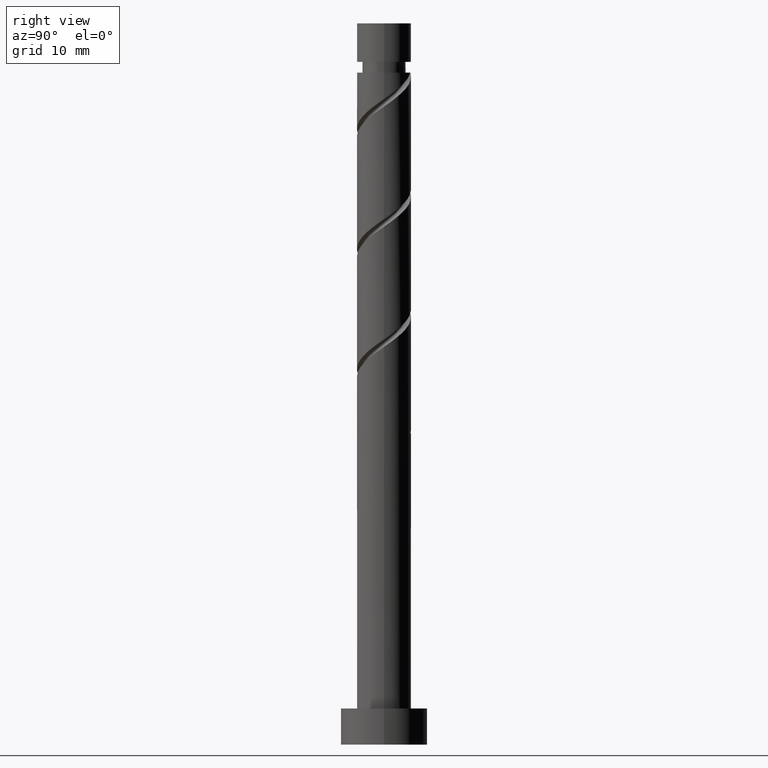
[diagram: clean part render]
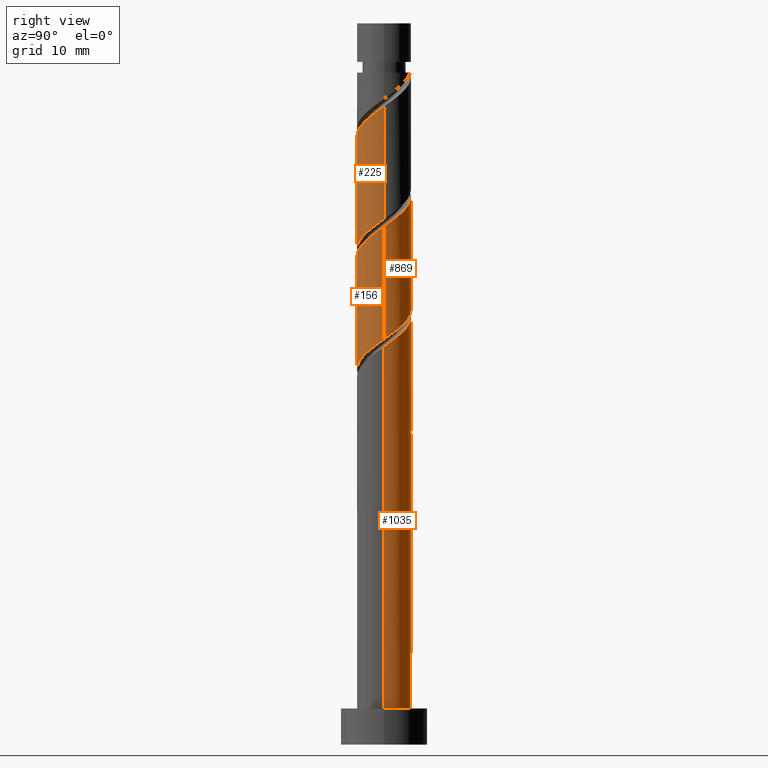
[diagram: same view with one multi-face feature highlighted, each face labeled with its STEP entity id]
A machine part, right view. The highlighted faces form ONE feature: a constant-radius fillet chain: 4 tangent blend faces with common blend radius 3.75 mm. The faces share edges in the B-rep.
Their STEP definitions:
[1] entity #225 (Cylinder):
#33 = CARTESIAN_POINT ( 'NONE',  ( -1.394242231933575216, -3.543417652029101639, 67.70943715520195383 ) ) ;
#80 = CARTESIAN_POINT ( 'NONE',  ( 3.750000000000000000, 4.592425496802573972E-16, 100.0000000000000000 ) ) ;
#108 = CARTESIAN_POINT ( 'NONE',  ( 2.933897913474575514, -2.335539131187822193, 86.69091863668346321 ) ) ;
#118 = CARTESIAN_POINT ( 'NONE',  ( -0.5556872624040036790, -3.708599690773053403, 83.91314085890567753 ) ) ;
#157 = CARTESIAN_POINT ( 'NONE',  ( 3.247477553077034340, -1.988368577572917850, 71.41314085890564911 ) ) ;
#162 = CARTESIAN_POINT ( 'NONE',  ( 3.489585175878574752, -1.373060559585228546, 71.87610382186859681 ) ) ;
#166 = CARTESIAN_POINT ( 'NONE',  ( 0.000000000000000000, 0.000000000000000000, 100.0000000000000000 ) ) ;
#169 = EDGE_CURVE ( 'NONE', #1388, #1272, #1254, .T. ) ;
#200 = ORIENTED_EDGE ( 'NONE', *, *, #1449, .F. ) ;
#202 = FACE_OUTER_BOUND ( 'NONE', #864, .T. ) ;
#209 = CARTESIAN_POINT ( 'NONE',  ( -2.809523069992834632, -2.483763297735530617, 82.06128900705378726 ) ) ;
#218 = CARTESIAN_POINT ( 'NONE',  ( -3.489585175878578749, -1.373060559585229878, 81.13536308112786344 ) ) ;
#225 = ADVANCED_FACE ( 'NONE', ( #202 ), #848, .T. ) ;
#229 = CARTESIAN_POINT ( 'NONE',  ( 1.958160791039665671, -3.198141072003383378, 85.76499271075753938 ) ) ;
#257 = VECTOR ( 'NONE', #544, 1000.000000000000000 ) ;
#262 = CARTESIAN_POINT ( 'NONE',  ( -3.345716476803391348, -1.818213770397982598, 65.85758530335009198 ) ) ;
#277 = ORIENTED_EDGE ( 'NONE', *, *, #949, .F. ) ;
#282 = LINE ( 'NONE', #80, #257 ) ;
#336 = CARTESIAN_POINT ( 'NONE',  ( 3.750000000000004885, 2.210967048940267779E-15, 88.47487856317617627 ) ) ;
#355 = CARTESIAN_POINT ( 'NONE',  ( 0.09823892372635467662, -3.806582347970903779, 84.37610382186861102 ) ) ;
#385 = CARTESIAN_POINT ( 'NONE',  ( 3.748751808761155324, -0.09674645373329211762, 72.80202974779454905 ) ) ;
#408 = CARTESIAN_POINT ( 'NONE',  ( 2.371568586908622933, -2.979158017898141608, 70.48721493297972529 ) ) ;
#432 = DIRECTION ( 'NONE',  ( -0.000000000000000000, -0.000000000000000000, -1.000000000000000000 ) ) ;
#448 =( BOUNDED_CURVE ( )  B_SPLINE_CURVE ( 2, ( #1344, #1372, #770, #1235, #218, #881, #209, #1363, #458, #666, #118, #355, #1126, #1382, #229, #782, #108, #676, #553, #467, #336 ),
 .UNSPECIFIED., .F., .T. ) 
 B_SPLINE_CURVE_WITH_KNOTS ( ( 3, 2, 2, 2, 2, 2, 2, 2, 2, 2, 3 ),
 ( 0.5545248053855289516, 0.5555555555555555802, 0.5694444444444444198, 0.5833333333333332593, 0.5972222222222222099, 0.6111111111111111605, 0.6250000000000000000, 0.6388888888888888395, 0.6527777777777777901, 0.6666666666666667407, 0.6795248053855291737 ),
 .UNSPECIFIED. ) 
 CURVE ( )  GEOMETRIC_REPRESENTATION_ITEM ( )  RATIONAL_B_SPLINE_CURVE ( ( 0.9071930855141259187, 0.9080659294509736412, 0.9090909090909138346, 0.8952797754656482976, 0.9090909090909138346, 0.8952797754656482976, 0.9090909090909138346, 0.8952797754656482976, 0.9090909090909138346, 0.8952797754656482976, 0.9090909090909138346, 0.8952797754656482976, 0.9090909090909138346, 0.8952797754656482976, 0.9090909090909138346, 0.8952797754656482976, 0.9090909090909138346, 0.8952797754656482976, 0.9090909090909138346, 0.8963047551055882689, 0.9071930855141263628 ) ) 
 REPRESENTATION_ITEM ( '' )  );
#458 = CARTESIAN_POINT ( 'NONE',  ( -1.790591017721495204, -3.294887525736672984, 82.98721493297971108 ) ) ;
#467 = CARTESIAN_POINT ( 'NONE',  ( 3.750000000000006661, -0.6114538943267114890, 88.04495905081056151 ) ) ;
#526 = ORIENTED_EDGE ( 'NONE', *, *, #169, .F. ) ;
#527 = DIRECTION ( 'NONE',  ( -1.000000000000000000, 0.000000000000000000, 0.000000000000000000 ) ) ;
#544 = DIRECTION ( 'NONE',  ( -0.000000000000000000, -0.000000000000000000, -1.000000000000000000 ) ) ;
#553 = CARTESIAN_POINT ( 'NONE',  ( 3.555763647822799189, -1.191236702264475644, 87.61684456260935860 ) ) ;
#608 = CARTESIAN_POINT ( 'NONE',  ( 1.790591017721492095, -3.294887525736669431, 70.02425197001677759 ) ) ;
#613 = CARTESIAN_POINT ( 'NONE',  ( -3.555763647822794749, -1.191236702264470981, 65.39462234038713007 ) ) ;
#617 = CARTESIAN_POINT ( 'NONE',  ( 3.750000000000000000, 2.464929480237475823E-16, 72.86992167315366942 ) ) ;
#666 = CARTESIAN_POINT ( 'NONE',  ( -1.209613448534362590, -3.610617033575203472, 83.45017789594271562 ) ) ;
#676 = CARTESIAN_POINT ( 'NONE',  ( 3.345716476803395345, -1.818213770397985929, 87.15388159964641090 ) ) ;
#703 = CARTESIAN_POINT ( 'NONE',  ( -3.750000000000000444, -0.6114538943267120441, 64.96650785218595558 ) ) ;
#751 = LINE ( 'NONE', #1427, #1253 ) ;
#770 = CARTESIAN_POINT ( 'NONE',  ( -3.748751808761160209, -0.09674645373329007758, 80.20943715520196804 ) ) ;
#782 = CARTESIAN_POINT ( 'NONE',  ( 2.522079350145755239, -2.852864491977661565, 86.22795567372047287 ) ) ;
#817 = AXIS2_PLACEMENT_3D ( 'NONE', #166, #976, #527 ) ;
#842 = CARTESIAN_POINT ( 'NONE',  ( 0.5556872624040019026, -3.708599690773048518, 69.09832604409083956 ) ) ;
#848 = CYLINDRICAL_SURFACE ( 'NONE', #817, 3.750000000000000000 ) ;
#864 = EDGE_LOOP ( 'NONE', ( #277, #200, #1134, #526 ) ) ;
#881 = CARTESIAN_POINT ( 'NONE',  ( -3.247477553077039669, -1.988368577572917850, 81.59832604409083956 ) ) ;
#901 = CARTESIAN_POINT ( 'NONE',  ( -3.750000000000004885, -2.255783948580948315E-15, 80.14154522984281925 ) ) ;
#922 = CARTESIAN_POINT ( 'NONE',  ( 3.750000000000004885, 2.210967048940267779E-15, 88.47487856317617627 ) ) ;
#930 = CARTESIAN_POINT ( 'NONE',  ( -1.958160791039663895, -3.198141072003378937, 67.24647419223899192 ) ) ;
#949 = EDGE_CURVE ( 'NONE', #1411, #1388, #282, .T. ) ;
#976 = DIRECTION ( 'NONE',  ( -0.000000000000000000, -0.000000000000000000, -1.000000000000000000 ) ) ;
#986 = EDGE_CURVE ( 'NONE', #1478, #1272, #751, .T. ) ;
#1049 = CARTESIAN_POINT ( 'NONE',  ( -0.7462405778299656678, -3.674999999999999822, 68.17240011816492995 ) ) ;
#1054 = CARTESIAN_POINT ( 'NONE',  ( 2.809523069992828859, -2.483763297735530173, 70.95017789594268720 ) ) ;
#1061 = CARTESIAN_POINT ( 'NONE',  ( 1.209613448534359481, -3.610617033575198587, 69.56128900705380147 ) ) ;
#1071 = CARTESIAN_POINT ( 'NONE',  ( 3.731692798680112499, -0.7577525415975427947, 72.33906678483157293 ) ) ;
#1126 = CARTESIAN_POINT ( 'NONE',  ( 0.7462405778299654457, -3.675000000000005596, 84.83906678483160135 ) ) ;
#1134 = ORIENTED_EDGE ( 'NONE', *, *, #986, .T. ) ;
#1160 = CARTESIAN_POINT ( 'NONE',  ( 3.750000000000000000, 2.464929480237475823E-16, 72.86992167315366942 ) ) ;
#1166 = CARTESIAN_POINT ( 'NONE',  ( -3.750000000000000000, -1.650755803431764037E-15, 64.53658833982032661 ) ) ;
#1181 = CARTESIAN_POINT ( 'NONE',  ( 3.749999999999999556, -0.04838127874507976850, 72.83590429922131193 ) ) ;
#1235 = CARTESIAN_POINT ( 'NONE',  ( -3.731692798680119161, -0.7577525415975426837, 80.67240011816492995 ) ) ;
#1253 = VECTOR ( 'NONE', #432, 1000.000000000000000 ) ;
#1254 =( BOUNDED_CURVE ( )  B_SPLINE_CURVE ( 2, ( #617, #1181, #385, #1071, #162, #157, #1054, #408, #608, #1061, #842, #1313, #1049, #33, #930, #1407, #1285, #262, #613, #703, #1166 ),
 .UNSPECIFIED., .F., .T. ) 
 B_SPLINE_CURVE_WITH_KNOTS ( ( 3, 2, 2, 2, 2, 2, 2, 2, 2, 2, 3 ),
 ( 0.5545248053855290626, 0.5555555555555555802, 0.5694444444444444198, 0.5833333333333333703, 0.5972222222222222099, 0.6111111111111111605, 0.6250000000000000000, 0.6388888888888888395, 0.6527777777777777901, 0.6666666666666666297, 0.6795248053855290626 ),
 .UNSPECIFIED. ) 
 CURVE ( )  GEOMETRIC_REPRESENTATION_ITEM ( )  RATIONAL_B_SPLINE_CURVE ( ( 0.9071930855141204786, 0.9080659294509680901, 0.9090909090909081725, 0.8952797754656427465, 0.9090909090909081725, 0.8952797754656427465, 0.9090909090909081725, 0.8952797754656427465, 0.9090909090909081725, 0.8952797754656427465, 0.9090909090909081725, 0.8952797754656427465, 0.9090909090909081725, 0.8952797754656427465, 0.9090909090909081725, 0.8952797754656427465, 0.9090909090909081725, 0.8952797754656427465, 0.9090909090909081725, 0.8963047551055828288, 0.9071930855141204786 ) ) 
 REPRESENTATION_ITEM ( '' )  );
#1272 = VERTEX_POINT ( 'NONE', #1367 ) ;
#1285 = CARTESIAN_POINT ( 'NONE',  ( -2.933897913474572849, -2.335539131187818640, 66.32054826631308231 ) ) ;
#1313 = CARTESIAN_POINT ( 'NONE',  ( -0.09823892372635779913, -3.806582347970898450, 68.63536308112787765 ) ) ;
#1344 = CARTESIAN_POINT ( 'NONE',  ( -3.750000000000004441, -2.255783948580947920E-15, 80.14154522984283346 ) ) ;
#1363 = CARTESIAN_POINT ( 'NONE',  ( -2.371568586908626930, -2.979158017898145605, 82.52425197001674917 ) ) ;
#1367 = CARTESIAN_POINT ( 'NONE',  ( -3.750000000000000000, -1.650755803431764037E-15, 64.53658833982032661 ) ) ;
#1372 = CARTESIAN_POINT ( 'NONE',  ( -3.750000000000004885, -0.04838127874507201776, 80.17556260377516253 ) ) ;
#1382 = CARTESIAN_POINT ( 'NONE',  ( 1.394242231933574105, -3.543417652029107856, 85.30202974779456326 ) ) ;
#1388 = VERTEX_POINT ( 'NONE', #1160 ) ;
#1407 = CARTESIAN_POINT ( 'NONE',  ( -2.522079350145751686, -2.852864491977655792, 66.78351122927601580 ) ) ;
#1411 = VERTEX_POINT ( 'NONE', #922 ) ;
#1427 = CARTESIAN_POINT ( 'NONE',  ( -3.750000000000000000, 0.000000000000000000, 100.0000000000000000 ) ) ;
#1449 = EDGE_CURVE ( 'NONE', #1478, #1411, #448, .T. ) ;
#1478 = VERTEX_POINT ( 'NONE', #901 ) ;
[2] entity #869 (Cylinder):
#11 = CARTESIAN_POINT ( 'NONE',  ( 1.394242231933573883, 3.543417652029101639, 59.37610382186862523 ) ) ;
#69 = CARTESIAN_POINT ( 'NONE',  ( -3.750000000000004441, -2.255783948580947920E-15, 80.14154522984283346 ) ) ;
#87 = CARTESIAN_POINT ( 'NONE',  ( -3.489585175878574752, 1.373060559585228768, 63.54277048853529664 ) ) ;
#146 = CARTESIAN_POINT ( 'NONE',  ( 3.750000000000004885, -2.599380179159503429E-15, 71.80821189650949066 ) ) ;
#164 = LINE ( 'NONE', #963, #960 ) ;
#179 = CARTESIAN_POINT ( 'NONE',  ( -2.933897913474575514, 2.335539131187822193, 78.35758530335010619 ) ) ;
#183 = VERTEX_POINT ( 'NONE', #146 ) ;
#184 = DIRECTION ( 'NONE',  ( -0.000000000000000000, -0.000000000000000000, -1.000000000000000000 ) ) ;
#195 = CARTESIAN_POINT ( 'NONE',  ( 3.489585175878579193, 1.373060559585228768, 72.80202974779453484 ) ) ;
#244 = ORIENTED_EDGE ( 'NONE', *, *, #986, .F. ) ;
#269 = EDGE_LOOP ( 'NONE', ( #423, #1223, #1226, #244 ) ) ;
#289 = CARTESIAN_POINT ( 'NONE',  ( -3.750000000000000000, -1.650755803431764037E-15, 64.53658833982032661 ) ) ;
#294 = CARTESIAN_POINT ( 'NONE',  ( -1.394242231933575438, 3.543417652029106524, 76.96869641446119203 ) ) ;
#312 = CARTESIAN_POINT ( 'NONE',  ( 3.750000000000004441, 0.04838127874508553472, 71.84222927044183393 ) ) ;
#326 = CARTESIAN_POINT ( 'NONE',  ( 2.933897913474573294, 2.335539131187818640, 57.98721493297974661 ) ) ;
#331 = CARTESIAN_POINT ( 'NONE',  ( 2.371568586908627374, 2.979158017898145161, 74.19091863668340636 ) ) ;
#335 = CARTESIAN_POINT ( 'NONE',  ( 2.522079350145753462, 2.852864491977654460, 58.45017789594269431 ) ) ;
#343 = CARTESIAN_POINT ( 'NONE',  ( 3.345716476803391348, 1.818213770397982376, 57.52425197001676338 ) ) ;
#388 = EDGE_CURVE ( 'NONE', #183, #1478, #1425, .T. ) ;
#401 =( BOUNDED_CURVE ( )  B_SPLINE_CURVE ( 2, ( #289, #728, #1220, #651, #87, #550, #854, #736, #404, #1089, #839, #1076, #557, #11, #762, #335, #326, #343, #658, #1124, #1266 ),
 .UNSPECIFIED., .F., .T. ) 
 B_SPLINE_CURVE_WITH_KNOTS ( ( 3, 2, 2, 2, 2, 2, 2, 2, 2, 2, 3 ),
 ( 0.6795248053855290626, 0.6805555555555555802, 0.6944444444444444198, 0.7083333333333333703, 0.7222222222222222099, 0.7361111111111111605, 0.7500000000000000000, 0.7638888888888888395, 0.7777777777777777901, 0.7916666666666666297, 0.8045248053855290626 ),
 .UNSPECIFIED. ) 
 CURVE ( )  GEOMETRIC_REPRESENTATION_ITEM ( )  RATIONAL_B_SPLINE_CURVE ( ( 0.9071930855141204786, 0.9080659294509680901, 0.9090909090909081725, 0.8952797754656427465, 0.9090909090909081725, 0.8952797754656427465, 0.9090909090909081725, 0.8952797754656427465, 0.9090909090909081725, 0.8952797754656427465, 0.9090909090909081725, 0.8952797754656427465, 0.9090909090909081725, 0.8952797754656427465, 0.9090909090909081725, 0.8952797754656427465, 0.9090909090909081725, 0.8952797754656427465, 0.9090909090909081725, 0.8963047551055828288, 0.9071930855141204786 ) ) 
 REPRESENTATION_ITEM ( '' )  );
#404 = CARTESIAN_POINT ( 'NONE',  ( -1.790591017721492095, 3.294887525736669431, 61.69091863668344189 ) ) ;
#423 = ORIENTED_EDGE ( 'NONE', *, *, #388, .F. ) ;
#432 = DIRECTION ( 'NONE',  ( -0.000000000000000000, -0.000000000000000000, -1.000000000000000000 ) ) ;
#517 = VERTEX_POINT ( 'NONE', #1008 ) ;
#533 = CARTESIAN_POINT ( 'NONE',  ( 3.247477553077040557, 1.988368577572915630, 73.26499271075751096 ) ) ;
#539 = CARTESIAN_POINT ( 'NONE',  ( 1.790591017721496092, 3.294887525736672984, 74.65388159964643933 ) ) ;
#550 = CARTESIAN_POINT ( 'NONE',  ( -3.247477553077035228, 1.988368577572916074, 63.07980752557232051 ) ) ;
#557 = CARTESIAN_POINT ( 'NONE',  ( 0.7462405778299660009, 3.674999999999999822, 59.83906678483158714 ) ) ;
#620 = CARTESIAN_POINT ( 'NONE',  ( -1.958160791039665671, 3.198141072003383378, 77.43165937742416816 ) ) ;
#628 = CYLINDRICAL_SURFACE ( 'NONE', #760, 3.750000000000000000 ) ;
#632 = CARTESIAN_POINT ( 'NONE',  ( -3.345716476803395789, 1.818213770397985707, 78.82054826631305389 ) ) ;
#651 = CARTESIAN_POINT ( 'NONE',  ( -3.731692798680112499, 0.7577525415975424616, 64.00573345149823012 ) ) ;
#658 = CARTESIAN_POINT ( 'NONE',  ( 3.555763647822794749, 1.191236702264472092, 57.06128900705380147 ) ) ;
#728 = CARTESIAN_POINT ( 'NONE',  ( -3.749999999999999556, 0.04838127874507840848, 64.50257096588796912 ) ) ;
#731 = CARTESIAN_POINT ( 'NONE',  ( -2.522079350145755683, 2.852864491977660233, 77.89462234038713007 ) ) ;
#736 = CARTESIAN_POINT ( 'NONE',  ( -2.371568586908623377, 2.979158017898141608, 62.15388159964640380 ) ) ;
#746 = CARTESIAN_POINT ( 'NONE',  ( -3.555763647822800078, 1.191236702264474756, 79.28351122927603001 ) ) ;
#751 = LINE ( 'NONE', #1427, #1253 ) ;
#756 = CARTESIAN_POINT ( 'NONE',  ( 1.209613448534364366, 3.610617033575202584, 75.11684456260937282 ) ) ;
#760 = AXIS2_PLACEMENT_3D ( 'NONE', #1328, #1317, #1083 ) ;
#762 = CARTESIAN_POINT ( 'NONE',  ( 1.958160791039665671, 3.198141072003377161, 58.91314085890565622 ) ) ;
#839 = CARTESIAN_POINT ( 'NONE',  ( -0.5556872624040021247, 3.708599690773048518, 60.76499271075751807 ) ) ;
#854 = CARTESIAN_POINT ( 'NONE',  ( -2.809523069992829747, 2.483763297735527953, 62.61684456260936571 ) ) ;
#857 = CARTESIAN_POINT ( 'NONE',  ( 3.748751808761160209, 0.09674645373329038289, 71.87610382186862523 ) ) ;
#869 = ADVANCED_FACE ( 'NONE', ( #1099 ), #628, .T. ) ;
#901 = CARTESIAN_POINT ( 'NONE',  ( -3.750000000000004885, -2.255783948580948315E-15, 80.14154522984281925 ) ) ;
#937 = EDGE_CURVE ( 'NONE', #183, #517, #164, .T. ) ;
#960 = VECTOR ( 'NONE', #184, 1000.000000000000000 ) ;
#963 = CARTESIAN_POINT ( 'NONE',  ( 3.750000000000000000, 4.592425496802573972E-16, 100.0000000000000000 ) ) ;
#986 = EDGE_CURVE ( 'NONE', #1478, #1272, #751, .T. ) ;
#1005 = EDGE_CURVE ( 'NONE', #1272, #517, #401, .T. ) ;
#1008 = CARTESIAN_POINT ( 'NONE',  ( 3.750000000000000000, 2.464929480237475823E-16, 56.20325500648699801 ) ) ;
#1076 = CARTESIAN_POINT ( 'NONE',  ( 0.09823892372635632808, 3.806582347970897562, 60.30202974779453484 ) ) ;
#1083 = DIRECTION ( 'NONE',  ( -1.000000000000000000, 0.000000000000000000, 0.000000000000000000 ) ) ;
#1086 = CARTESIAN_POINT ( 'NONE',  ( -3.750000000000003553, 0.6114538943267193716, 79.71162571747719028 ) ) ;
#1089 = CARTESIAN_POINT ( 'NONE',  ( -1.209613448534360369, 3.610617033575198587, 61.22795567372045156 ) ) ;
#1093 = CARTESIAN_POINT ( 'NONE',  ( 3.731692798680119161, 0.7577525415975422396, 72.33906678483157293 ) ) ;
#1099 = FACE_OUTER_BOUND ( 'NONE', #269, .T. ) ;
#1112 = CARTESIAN_POINT ( 'NONE',  ( 0.5556872624040058994, 3.708599690773053403, 75.57980752557233473 ) ) ;
#1124 = CARTESIAN_POINT ( 'NONE',  ( 3.750000000000000000, 0.6114538943267100457, 56.63317451885261988 ) ) ;
#1187 = CARTESIAN_POINT ( 'NONE',  ( -0.09823892372635575909, 3.806582347970903335, 76.04277048853529664 ) ) ;
#1194 = CARTESIAN_POINT ( 'NONE',  ( 3.750000000000004885, -2.599380179159503429E-15, 71.80821189650947645 ) ) ;
#1220 = CARTESIAN_POINT ( 'NONE',  ( -3.748751808761155324, 0.09674645373329084086, 64.46869641446120625 ) ) ;
#1223 = ORIENTED_EDGE ( 'NONE', *, *, #937, .T. ) ;
#1226 = ORIENTED_EDGE ( 'NONE', *, *, #1005, .F. ) ;
#1253 = VECTOR ( 'NONE', #432, 1000.000000000000000 ) ;
#1266 = CARTESIAN_POINT ( 'NONE',  ( 3.750000000000000000, 2.464929480237475823E-16, 56.20325500648700512 ) ) ;
#1272 = VERTEX_POINT ( 'NONE', #1367 ) ;
#1317 = DIRECTION ( 'NONE',  ( -0.000000000000000000, -0.000000000000000000, -1.000000000000000000 ) ) ;
#1328 = CARTESIAN_POINT ( 'NONE',  ( 0.000000000000000000, 0.000000000000000000, 100.0000000000000000 ) ) ;
#1356 = CARTESIAN_POINT ( 'NONE',  ( 2.809523069992833744, 2.483763297735532394, 73.72795567372047287 ) ) ;
#1367 = CARTESIAN_POINT ( 'NONE',  ( -3.750000000000000000, -1.650755803431764037E-15, 64.53658833982032661 ) ) ;
#1425 =( BOUNDED_CURVE ( )  B_SPLINE_CURVE ( 2, ( #1194, #312, #857, #1093, #195, #533, #1356, #331, #539, #756, #1112, #1187, #1440, #294, #620, #731, #179, #632, #746, #1086, #69 ),
 .UNSPECIFIED., .F., .T. ) 
 B_SPLINE_CURVE_WITH_KNOTS ( ( 3, 2, 2, 2, 2, 2, 2, 2, 2, 2, 3 ),
 ( 0.4295248053855292292, 0.4305555555555555802, 0.4444444444444444198, 0.4583333333333333703, 0.4722222222222222099, 0.4861111111111111605, 0.5000000000000000000, 0.5138888888888888395, 0.5277777777777777901, 0.5416666666666667407, 0.5545248053855289516 ),
 .UNSPECIFIED. ) 
 CURVE ( )  GEOMETRIC_REPRESENTATION_ITEM ( )  RATIONAL_B_SPLINE_CURVE ( ( 0.9071930855141263628, 0.9080659294509738633, 0.9090909090909138346, 0.8952797754656482976, 0.9090909090909138346, 0.8952797754656482976, 0.9090909090909138346, 0.8952797754656482976, 0.9090909090909138346, 0.8952797754656482976, 0.9090909090909138346, 0.8952797754656482976, 0.9090909090909138346, 0.8952797754656482976, 0.9090909090909138346, 0.8952797754656482976, 0.9090909090909138346, 0.8952797754656482976, 0.9090909090909138346, 0.8963047551055884909, 0.9071930855141259187 ) ) 
 REPRESENTATION_ITEM ( '' )  );
#1427 = CARTESIAN_POINT ( 'NONE',  ( -3.750000000000000000, 0.000000000000000000, 100.0000000000000000 ) ) ;
#1440 = CARTESIAN_POINT ( 'NONE',  ( -0.7462405778299648906, 3.675000000000005596, 76.50573345149824434 ) ) ;
#1478 = VERTEX_POINT ( 'NONE', #901 ) ;
[3] entity #156 (Cylinder):
#39 = CARTESIAN_POINT ( 'NONE',  ( -0.5556872624040036790, -3.708599690773053403, 67.24647419223899192 ) ) ;
#42 = VECTOR ( 'NONE', #1022, 1000.000000000000000 ) ;
#106 = EDGE_CURVE ( 'NONE', #1059, #183, #502, .T. ) ;
#126 = CARTESIAN_POINT ( 'NONE',  ( -2.522079350145751686, -2.852864491977655792, 50.11684456260935150 ) ) ;
#146 = CARTESIAN_POINT ( 'NONE',  ( 3.750000000000004885, -2.599380179159503429E-15, 71.80821189650949066 ) ) ;
#156 = ADVANCED_FACE ( 'NONE', ( #599 ), #1291, .T. ) ;
#164 = LINE ( 'NONE', #963, #960 ) ;
#183 = VERTEX_POINT ( 'NONE', #146 ) ;
#184 = DIRECTION ( 'NONE',  ( -0.000000000000000000, -0.000000000000000000, -1.000000000000000000 ) ) ;
#216 = CARTESIAN_POINT ( 'NONE',  ( -3.750000000000000444, -0.6114538943267120441, 48.29984118551928418 ) ) ;
#227 = CARTESIAN_POINT ( 'NONE',  ( 1.209613448534359481, -3.610617033575198587, 52.89462234038713717 ) ) ;
#238 = CARTESIAN_POINT ( 'NONE',  ( -3.750000000000004885, 2.554563279518822893E-15, 63.47487856317615496 ) ) ;
#270 = CARTESIAN_POINT ( 'NONE',  ( 3.345716476803395345, -1.818213770397985929, 70.48721493297973950 ) ) ;
#278 = DIRECTION ( 'NONE',  ( -0.000000000000000000, -0.000000000000000000, -1.000000000000000000 ) ) ;
#318 = CARTESIAN_POINT ( 'NONE',  ( -3.750000000000000000, -1.650755803431764037E-15, 47.86992167315366942 ) ) ;
#363 = CARTESIAN_POINT ( 'NONE',  ( 3.750000000000000000, 2.464929480237475823E-16, 56.20325500648700512 ) ) ;
#376 = LINE ( 'NONE', #670, #42 ) ;
#379 = CARTESIAN_POINT ( 'NONE',  ( 0.000000000000000000, 0.000000000000000000, 100.0000000000000000 ) ) ;
#392 = CARTESIAN_POINT ( 'NONE',  ( -1.790591017721495204, -3.294887525736672984, 66.32054826631308231 ) ) ;
#446 = CARTESIAN_POINT ( 'NONE',  ( 2.371568586908622933, -2.979158017898141608, 53.82054826631306810 ) ) ;
#474 = CARTESIAN_POINT ( 'NONE',  ( 1.790591017721492095, -3.294887525736669431, 53.35758530335009908 ) ) ;
#495 = CARTESIAN_POINT ( 'NONE',  ( -3.247477553077039669, -1.988368577572917850, 64.93165937742415394 ) ) ;
#502 =( BOUNDED_CURVE ( )  B_SPLINE_CURVE ( 2, ( #1142, #1131, #1023, #790, #785, #495, #511, #1419, #392, #828, #39, #824, #507, #1066, #1297, #720, #959, #270, #518, #834, #1424 ),
 .UNSPECIFIED., .F., .T. ) 
 B_SPLINE_CURVE_WITH_KNOTS ( ( 3, 2, 2, 2, 2, 2, 2, 2, 2, 2, 3 ),
 ( 0.3045248053855290626, 0.3055555555555555802, 0.3194444444444444198, 0.3333333333333333703, 0.3472222222222222099, 0.3611111111111111605, 0.3750000000000000000, 0.3888888888888888395, 0.4027777777777777901, 0.4166666666666666297, 0.4295248053855292292 ),
 .UNSPECIFIED. ) 
 CURVE ( )  GEOMETRIC_REPRESENTATION_ITEM ( )  RATIONAL_B_SPLINE_CURVE ( ( 0.9071930855141261407, 0.9080659294509737522, 0.9090909090909138346, 0.8952797754656482976, 0.9090909090909138346, 0.8952797754656482976, 0.9090909090909138346, 0.8952797754656482976, 0.9090909090909138346, 0.8952797754656482976, 0.9090909090909138346, 0.8952797754656482976, 0.9090909090909138346, 0.8952797754656482976, 0.9090909090909138346, 0.8952797754656482976, 0.9090909090909138346, 0.8952797754656482976, 0.9090909090909138346, 0.8963047551055882689, 0.9071930855141263628 ) ) 
 REPRESENTATION_ITEM ( '' )  );
#507 = CARTESIAN_POINT ( 'NONE',  ( 0.7462405778299654457, -3.675000000000005596, 68.17240011816491574 ) ) ;
#511 = CARTESIAN_POINT ( 'NONE',  ( -2.809523069992834632, -2.483763297735530617, 65.39462234038713007 ) ) ;
#517 = VERTEX_POINT ( 'NONE', #1008 ) ;
#518 = CARTESIAN_POINT ( 'NONE',  ( 3.555763647822799189, -1.191236702264475644, 70.95017789594268720 ) ) ;
#549 = EDGE_LOOP ( 'NONE', ( #712, #1312, #974, #1484 ) ) ;
#580 = CARTESIAN_POINT ( 'NONE',  ( -2.933897913474572849, -2.335539131187818640, 49.65388159964638959 ) ) ;
#599 = FACE_OUTER_BOUND ( 'NONE', #549, .T. ) ;
#664 = CARTESIAN_POINT ( 'NONE',  ( -0.09823892372635779913, -3.806582347970898450, 51.96869641446121335 ) ) ;
#670 = CARTESIAN_POINT ( 'NONE',  ( -3.750000000000000000, 0.000000000000000000, 100.0000000000000000 ) ) ;
#673 = CARTESIAN_POINT ( 'NONE',  ( 0.5556872624040019026, -3.708599690773048518, 52.43165937742418237 ) ) ;
#683 = CARTESIAN_POINT ( 'NONE',  ( 3.731692798680112499, -0.7577525415975427947, 55.67240011816492284 ) ) ;
#712 = ORIENTED_EDGE ( 'NONE', *, *, #937, .F. ) ;
#720 = CARTESIAN_POINT ( 'NONE',  ( 2.522079350145755239, -2.852864491977661565, 69.56128900705380147 ) ) ;
#785 = CARTESIAN_POINT ( 'NONE',  ( -3.489585175878578749, -1.373060559585229878, 64.46869641446122046 ) ) ;
#790 = CARTESIAN_POINT ( 'NONE',  ( -3.731692798680119161, -0.7577525415975426837, 64.00573345149824434 ) ) ;
#800 = CARTESIAN_POINT ( 'NONE',  ( -3.345716476803391348, -1.818213770397982598, 49.19091863668343478 ) ) ;
#819 = AXIS2_PLACEMENT_3D ( 'NONE', #379, #278, #1177 ) ;
#824 = CARTESIAN_POINT ( 'NONE',  ( 0.09823892372635467662, -3.806582347970903779, 67.70943715520195383 ) ) ;
#828 = CARTESIAN_POINT ( 'NONE',  ( -1.209613448534362590, -3.610617033575203472, 66.78351122927601580 ) ) ;
#834 = CARTESIAN_POINT ( 'NONE',  ( 3.750000000000007994, -0.6114538943267088245, 71.37829238414389010 ) ) ;
#892 = CARTESIAN_POINT ( 'NONE',  ( -3.750000000000000000, -1.650755803431764037E-15, 47.86992167315366942 ) ) ;
#900 = CARTESIAN_POINT ( 'NONE',  ( -3.555763647822794749, -1.191236702264470981, 48.72795567372045866 ) ) ;
#931 =( BOUNDED_CURVE ( )  B_SPLINE_CURVE ( 2, ( #363, #1135, #1389, #683, #1257, #1243, #1145, #446, #474, #227, #673, #664, #1351, #1362, #1233, #126, #580, #800, #900, #216, #892 ),
 .UNSPECIFIED., .F., .T. ) 
 B_SPLINE_CURVE_WITH_KNOTS ( ( 3, 2, 2, 2, 2, 2, 2, 2, 2, 2, 3 ),
 ( 0.8045248053855290626, 0.8055555555555555802, 0.8194444444444444198, 0.8333333333333333703, 0.8472222222222222099, 0.8611111111111111605, 0.8750000000000000000, 0.8888888888888888395, 0.9027777777777777901, 0.9166666666666666297, 0.9295248053855290626 ),
 .UNSPECIFIED. ) 
 CURVE ( )  GEOMETRIC_REPRESENTATION_ITEM ( )  RATIONAL_B_SPLINE_CURVE ( ( 0.9071930855141204786, 0.9080659294509680901, 0.9090909090909081725, 0.8952797754656427465, 0.9090909090909081725, 0.8952797754656427465, 0.9090909090909081725, 0.8952797754656427465, 0.9090909090909081725, 0.8952797754656427465, 0.9090909090909081725, 0.8952797754656427465, 0.9090909090909081725, 0.8952797754656427465, 0.9090909090909081725, 0.8952797754656427465, 0.9090909090909081725, 0.8952797754656427465, 0.9090909090909081725, 0.8963047551055828288, 0.9071930855141204786 ) ) 
 REPRESENTATION_ITEM ( '' )  );
#937 = EDGE_CURVE ( 'NONE', #183, #517, #164, .T. ) ;
#959 = CARTESIAN_POINT ( 'NONE',  ( 2.933897913474575514, -2.335539131187822193, 70.02425197001676338 ) ) ;
#960 = VECTOR ( 'NONE', #184, 1000.000000000000000 ) ;
#963 = CARTESIAN_POINT ( 'NONE',  ( 3.750000000000000000, 4.592425496802573972E-16, 100.0000000000000000 ) ) ;
#974 = ORIENTED_EDGE ( 'NONE', *, *, #1286, .T. ) ;
#1008 = CARTESIAN_POINT ( 'NONE',  ( 3.750000000000000000, 2.464929480237475823E-16, 56.20325500648699801 ) ) ;
#1022 = DIRECTION ( 'NONE',  ( -0.000000000000000000, -0.000000000000000000, -1.000000000000000000 ) ) ;
#1023 = CARTESIAN_POINT ( 'NONE',  ( -3.748751808761160209, -0.09674645373329007758, 63.54277048853529664 ) ) ;
#1059 = VERTEX_POINT ( 'NONE', #238 ) ;
#1066 = CARTESIAN_POINT ( 'NONE',  ( 1.394242231933574105, -3.543417652029107856, 68.63536308112787765 ) ) ;
#1074 = EDGE_CURVE ( 'NONE', #517, #1458, #931, .T. ) ;
#1131 = CARTESIAN_POINT ( 'NONE',  ( -3.750000000000004441, -0.04838127874507758275, 63.50889593710852665 ) ) ;
#1135 = CARTESIAN_POINT ( 'NONE',  ( 3.749999999999999556, -0.04838127874507976850, 56.16923763255463342 ) ) ;
#1142 = CARTESIAN_POINT ( 'NONE',  ( -3.750000000000004885, 2.554563279518822893E-15, 63.47487856317615496 ) ) ;
#1145 = CARTESIAN_POINT ( 'NONE',  ( 2.809523069992828859, -2.483763297735530173, 54.28351122927602290 ) ) ;
#1177 = DIRECTION ( 'NONE',  ( -1.000000000000000000, 0.000000000000000000, 0.000000000000000000 ) ) ;
#1233 = CARTESIAN_POINT ( 'NONE',  ( -1.958160791039663895, -3.198141072003378937, 50.57980752557232051 ) ) ;
#1243 = CARTESIAN_POINT ( 'NONE',  ( 3.247477553077034340, -1.988368577572917850, 54.74647419223899192 ) ) ;
#1257 = CARTESIAN_POINT ( 'NONE',  ( 3.489585175878574752, -1.373060559585228546, 55.20943715520195383 ) ) ;
#1286 = EDGE_CURVE ( 'NONE', #1059, #1458, #376, .T. ) ;
#1291 = CYLINDRICAL_SURFACE ( 'NONE', #819, 3.750000000000000000 ) ;
#1297 = CARTESIAN_POINT ( 'NONE',  ( 1.958160791039665671, -3.198141072003383378, 69.09832604409085377 ) ) ;
#1312 = ORIENTED_EDGE ( 'NONE', *, *, #106, .F. ) ;
#1351 = CARTESIAN_POINT ( 'NONE',  ( -0.7462405778299656678, -3.674999999999999822, 51.50573345149823012 ) ) ;
#1362 = CARTESIAN_POINT ( 'NONE',  ( -1.394242231933575216, -3.543417652029101639, 51.04277048853528242 ) ) ;
#1389 = CARTESIAN_POINT ( 'NONE',  ( 3.748751808761155324, -0.09674645373329211762, 56.13536308112788475 ) ) ;
#1419 = CARTESIAN_POINT ( 'NONE',  ( -2.371568586908626930, -2.979158017898145605, 65.85758530335009198 ) ) ;
#1424 = CARTESIAN_POINT ( 'NONE',  ( 3.750000000000004885, -2.599380179159503429E-15, 71.80821189650947645 ) ) ;
#1458 = VERTEX_POINT ( 'NONE', #318 ) ;
#1484 = ORIENTED_EDGE ( 'NONE', *, *, #1074, .F. ) ;
[4] entity #1035 (Cylinder):
#1 = CARTESIAN_POINT ( 'NONE',  ( 3.489585175878579193, 1.373060559585228768, 56.13536308112789186 ) ) ;
#3 = CARTESIAN_POINT ( 'NONE',  ( 0.000000000000000000, 0.000000000000000000, 100.0000000000000000 ) ) ;
#17 = CARTESIAN_POINT ( 'NONE',  ( -3.247477553077035228, 1.988368577572916074, 46.41314085890564911 ) ) ;
#22 = CIRCLE ( 'NONE', #359, 3.750000000000000000 ) ;
#42 = VECTOR ( 'NONE', #1022, 1000.000000000000000 ) ;
#60 = CIRCLE ( 'NONE', #1012, 3.750000000000000000 ) ;
#62 = CARTESIAN_POINT ( 'NONE',  ( 3.750000000000000000, 4.592425496802573972E-16, 5.000000000000000000 ) ) ;
#98 = ORIENTED_EDGE ( 'NONE', *, *, #1286, .F. ) ;
#103 = ORIENTED_EDGE ( 'NONE', *, *, #1114, .T. ) ;
#113 = CARTESIAN_POINT ( 'NONE',  ( -3.555763647822800078, 1.191236702264474756, 62.61684456260935860 ) ) ;
#120 = CARTESIAN_POINT ( 'NONE',  ( -1.209613448534360369, 3.610617033575198587, 44.56128900705380858 ) ) ;
#131 = CARTESIAN_POINT ( 'NONE',  ( 1.209613448534364366, 3.610617033575202584, 58.45017789594268720 ) ) ;
#187 = ORIENTED_EDGE ( 'NONE', *, *, #699, .F. ) ;
#223 = CARTESIAN_POINT ( 'NONE',  ( -2.933897913474575514, 2.335539131187822193, 61.69091863668342768 ) ) ;
#235 = CARTESIAN_POINT ( 'NONE',  ( 0.5556872624040058994, 3.708599690773053403, 58.91314085890564911 ) ) ;
#237 = ORIENTED_EDGE ( 'NONE', *, *, #286, .T. ) ;
#238 = CARTESIAN_POINT ( 'NONE',  ( -3.750000000000004885, 2.554563279518822893E-15, 63.47487856317615496 ) ) ;
#241 = CARTESIAN_POINT ( 'NONE',  ( -2.371568586908623377, 2.979158017898141608, 45.48721493297973240 ) ) ;
#245 = DIRECTION ( 'NONE',  ( -1.000000000000000000, 0.000000000000000000, 0.000000000000000000 ) ) ;
#286 = EDGE_CURVE ( 'NONE', #320, #1429, #60, .T. ) ;
#288 =( BOUNDED_CURVE ( )  B_SPLINE_CURVE ( 2, ( #374, #942, #1163, #822, #396, #1068, #1179, #492, #1046 ),
 .UNSPECIFIED., .F., .T. ) 
 B_SPLINE_CURVE_WITH_KNOTS ( ( 3, 2, 2, 2, 3 ),
 ( 0.000000000000000000, 0.01388888888888883955, 0.02777777777777779011, 0.04166666666666662966, 0.05452480538552920836 ),
 .UNSPECIFIED. ) 
 CURVE ( )  GEOMETRIC_REPRESENTATION_ITEM ( )  RATIONAL_B_SPLINE_CURVE ( ( 0.9090909090909138346, 0.8952797754656482976, 0.9090909090909138346, 0.8952797754656482976, 0.9090909090909138346, 0.8952797754656482976, 0.9090909090909138346, 0.8963047551055882689, 0.9071930855141262517 ) ) 
 REPRESENTATION_ITEM ( '' )  );
#318 = CARTESIAN_POINT ( 'NONE',  ( -3.750000000000000000, -1.650755803431764037E-15, 47.86992167315366942 ) ) ;
#320 = VERTEX_POINT ( 'NONE', #62 ) ;
#347 = CARTESIAN_POINT ( 'NONE',  ( -1.790591017721492095, 3.294887525736669431, 45.02425197001676338 ) ) ;
#359 = AXIS2_PLACEMENT_3D ( 'NONE', #906, #563, #689 ) ;
#365 = EDGE_CURVE ( 'NONE', #1029, #1429, #1469, .T. ) ;
#374 = CARTESIAN_POINT ( 'NONE',  ( -0.7462405778299647796, 3.675000000000005151, 43.17240011816490153 ) ) ;
#376 = LINE ( 'NONE', #670, #42 ) ;
#396 = CARTESIAN_POINT ( 'NONE',  ( -2.933897913474575514, 2.335539131187822193, 45.02425197001675627 ) ) ;
#412 = DIRECTION ( 'NONE',  ( 1.000000000000000000, 0.000000000000000000, 0.000000000000000000 ) ) ;
#420 = DIRECTION ( 'NONE',  ( -0.000000000000000000, -0.000000000000000000, -1.000000000000000000 ) ) ;
#460 = CARTESIAN_POINT ( 'NONE',  ( -3.750000000000000000, -1.650755803431764037E-15, 47.86992167315366942 ) ) ;
#465 = LINE ( 'NONE', #880, #985 ) ;
#480 = CARTESIAN_POINT ( 'NONE',  ( -1.958160791039665671, 3.198141072003383378, 60.76499271075752517 ) ) ;
#492 = CARTESIAN_POINT ( 'NONE',  ( -3.750000000000007550, 0.6114538943267072701, 46.37829238414386168 ) ) ;
#506 = ORIENTED_EDGE ( 'NONE', *, *, #365, .F. ) ;
#554 = CARTESIAN_POINT ( 'NONE',  ( 0.000000000000000000, 0.000000000000000000, 5.000000000000000000 ) ) ;
#563 = DIRECTION ( 'NONE',  ( 0.000000000000000000, -0.000000000000000000, -1.000000000000000000 ) ) ;
#583 = CARTESIAN_POINT ( 'NONE',  ( -3.489585175878574752, 1.373060559585228768, 46.87610382186862523 ) ) ;
#587 = CARTESIAN_POINT ( 'NONE',  ( -2.809523069992829747, 2.483763297735527953, 45.95017789594268720 ) ) ;
#590 = CARTESIAN_POINT ( 'NONE',  ( 3.748751808761160209, 0.09674645373329038289, 55.20943715520195383 ) ) ;
#593 = EDGE_CURVE ( 'NONE', #1458, #727, #1195, .T. ) ;
#618 = CARTESIAN_POINT ( 'NONE',  ( -0.7462405778299647796, 3.675000000000005151, 43.17240011816490863 ) ) ;
#653 = ORIENTED_EDGE ( 'NONE', *, *, #1439, .F. ) ;
#668 = CARTESIAN_POINT ( 'NONE',  ( -3.748751808761155324, 0.09674645373329084086, 47.80202974779454195 ) ) ;
#670 = CARTESIAN_POINT ( 'NONE',  ( -3.750000000000000000, 0.000000000000000000, 100.0000000000000000 ) ) ;
#682 = ORIENTED_EDGE ( 'NONE', *, *, #1060, .T. ) ;
#687 = CARTESIAN_POINT ( 'NONE',  ( 3.750000000000004885, -2.599380179159503429E-15, 55.14154522984282636 ) ) ;
#689 = DIRECTION ( 'NONE',  ( -1.000000000000000000, 0.000000000000000000, 0.000000000000000000 ) ) ;
#692 = CARTESIAN_POINT ( 'NONE',  ( -2.522079350145755683, 2.852864491977660233, 61.22795567372046577 ) ) ;
#699 = EDGE_CURVE ( 'NONE', #958, #1029, #288, .T. ) ;
#727 = VERTEX_POINT ( 'NONE', #816 ) ;
#761 = ORIENTED_EDGE ( 'NONE', *, *, #593, .F. ) ;
#768 = CYLINDRICAL_SURFACE ( 'NONE', #1387, 3.750000000000000000 ) ;
#775 = CARTESIAN_POINT ( 'NONE',  ( 2.371568586908627374, 2.979158017898145161, 57.52425197001676338 ) ) ;
#780 = FACE_OUTER_BOUND ( 'NONE', #1214, .T. ) ;
#784 = CARTESIAN_POINT ( 'NONE',  ( 0.7462405778299660009, 3.674999999999999378, 43.17240011816490863 ) ) ;
#797 = CARTESIAN_POINT ( 'NONE',  ( 2.809523069992833744, 2.483763297735532394, 57.06128900705379436 ) ) ;
#799 =( BOUNDED_CURVE ( )  B_SPLINE_CURVE ( 2, ( #687, #1130, #590, #891, #1, #905, #797, #775, #1395, #131, #235, #1240, #914, #1264, #480, #692, #223, #1156, #113, #897, #1377 ),
 .UNSPECIFIED., .F., .T. ) 
 B_SPLINE_CURVE_WITH_KNOTS ( ( 3, 2, 2, 2, 2, 2, 2, 2, 2, 2, 3 ),
 ( 0.1795248053855290626, 0.1805555555555555802, 0.1944444444444444198, 0.2083333333333333703, 0.2222222222222222099, 0.2361111111111111605, 0.2500000000000000000, 0.2638888888888888395, 0.2777777777777777901, 0.2916666666666666297, 0.3045248053855290626 ),
 .UNSPECIFIED. ) 
 CURVE ( )  GEOMETRIC_REPRESENTATION_ITEM ( )  RATIONAL_B_SPLINE_CURVE ( ( 0.9071930855141261407, 0.9080659294509737522, 0.9090909090909138346, 0.8952797754656482976, 0.9090909090909138346, 0.8952797754656482976, 0.9090909090909138346, 0.8952797754656482976, 0.9090909090909138346, 0.8952797754656482976, 0.9090909090909138346, 0.8952797754656482976, 0.9090909090909138346, 0.8952797754656482976, 0.9090909090909138346, 0.8952797754656482976, 0.9090909090909138346, 0.8952797754656482976, 0.9090909090909138346, 0.8963047551055883799, 0.9071930855141261407 ) ) 
 REPRESENTATION_ITEM ( '' )  );
#816 = CARTESIAN_POINT ( 'NONE',  ( 0.7462405778299660009, 3.674999999999999378, 43.17240011816490863 ) ) ;
#822 = CARTESIAN_POINT ( 'NONE',  ( -2.522079350145755683, 2.852864491977660233, 44.56128900705380147 ) ) ;
#880 = CARTESIAN_POINT ( 'NONE',  ( 3.750000000000000000, 4.592425496802573972E-16, 100.0000000000000000 ) ) ;
#883 = CARTESIAN_POINT ( 'NONE',  ( -3.750000000000000000, 0.000000000000000000, 100.0000000000000000 ) ) ;
#884 = VECTOR ( 'NONE', #420, 1000.000000000000000 ) ;
#891 = CARTESIAN_POINT ( 'NONE',  ( 3.731692798680119161, 0.7577525415975422396, 55.67240011816490863 ) ) ;
#894 = CARTESIAN_POINT ( 'NONE',  ( -3.731692798680112499, 0.7577525415975424616, 47.33906678483158004 ) ) ;
#897 = CARTESIAN_POINT ( 'NONE',  ( -3.750000000000004885, 0.6114538943267140425, 63.04495905081055440 ) ) ;
#905 = CARTESIAN_POINT ( 'NONE',  ( 3.247477553077040557, 1.988368577572915630, 56.59832604409084666 ) ) ;
#906 = CARTESIAN_POINT ( 'NONE',  ( 0.000000000000000000, 0.000000000000000000, 43.17240011816490863 ) ) ;
#914 = CARTESIAN_POINT ( 'NONE',  ( -0.7462405778299648906, 3.675000000000005596, 59.83906678483158004 ) ) ;
#942 = CARTESIAN_POINT ( 'NONE',  ( -1.394242231933575438, 3.543417652029106524, 43.63536308112787054 ) ) ;
#958 = VERTEX_POINT ( 'NONE', #618 ) ;
#985 = VECTOR ( 'NONE', #1476, 1000.000000000000000 ) ;
#1004 = CARTESIAN_POINT ( 'NONE',  ( -3.750000000000004885, 2.554563279518822893E-15, 46.80821189650949066 ) ) ;
#1010 = CARTESIAN_POINT ( 'NONE',  ( -3.750000000000000000, 0.000000000000000000, 5.000000000000000000 ) ) ;
#1012 = AXIS2_PLACEMENT_3D ( 'NONE', #554, #1079, #412 ) ;
#1022 = DIRECTION ( 'NONE',  ( -0.000000000000000000, -0.000000000000000000, -1.000000000000000000 ) ) ;
#1029 = VERTEX_POINT ( 'NONE', #1004 ) ;
#1030 = DIRECTION ( 'NONE',  ( -0.000000000000000000, -0.000000000000000000, -1.000000000000000000 ) ) ;
#1035 = ADVANCED_FACE ( 'NONE', ( #780 ), #768, .T. ) ;
#1046 = CARTESIAN_POINT ( 'NONE',  ( -3.750000000000004885, 2.554563279518822893E-15, 46.80821189650949066 ) ) ;
#1059 = VERTEX_POINT ( 'NONE', #238 ) ;
#1060 = EDGE_CURVE ( 'NONE', #1171, #320, #465, .T. ) ;
#1068 = CARTESIAN_POINT ( 'NONE',  ( -3.345716476803395789, 1.818213770397985707, 45.48721493297972529 ) ) ;
#1079 = DIRECTION ( 'NONE',  ( 0.000000000000000000, 0.000000000000000000, 1.000000000000000000 ) ) ;
#1114 = EDGE_CURVE ( 'NONE', #958, #727, #22, .T. ) ;
#1130 = CARTESIAN_POINT ( 'NONE',  ( 3.750000000000004441, 0.04838127874507770765, 55.17556260377516963 ) ) ;
#1147 = CARTESIAN_POINT ( 'NONE',  ( -0.5556872624040021247, 3.708599690773048518, 44.09832604409084666 ) ) ;
#1156 = CARTESIAN_POINT ( 'NONE',  ( -3.345716476803395789, 1.818213770397985707, 62.15388159964640380 ) ) ;
#1163 = CARTESIAN_POINT ( 'NONE',  ( -1.958160791039665671, 3.198141072003383378, 44.09832604409083245 ) ) ;
#1171 = VERTEX_POINT ( 'NONE', #1398 ) ;
#1179 = CARTESIAN_POINT ( 'NONE',  ( -3.555763647822800078, 1.191236702264474756, 45.95017789594270852 ) ) ;
#1195 =( BOUNDED_CURVE ( )  B_SPLINE_CURVE ( 2, ( #460, #1486, #668, #894, #583, #17, #587, #241, #347, #120, #1147, #1261, #784 ),
 .UNSPECIFIED., .F., .T. ) 
 B_SPLINE_CURVE_WITH_KNOTS ( ( 3, 2, 2, 2, 2, 2, 3 ),
 ( 0.9295248053855290626, 0.9305555555555555802, 0.9444444444444444198, 0.9583333333333333703, 0.9722222222222222099, 0.9861111111111111605, 1.000000000000000000 ),
 .UNSPECIFIED. ) 
 CURVE ( )  GEOMETRIC_REPRESENTATION_ITEM ( )  RATIONAL_B_SPLINE_CURVE ( ( 0.9071930855141204786, 0.9080659294509680901, 0.9090909090909081725, 0.8952797754656427465, 0.9090909090909081725, 0.8952797754656427465, 0.9090909090909081725, 0.8952797754656427465, 0.9090909090909081725, 0.8952797754656427465, 0.9090909090909081725, 0.8952797754656427465, 0.9090909090909081725 ) ) 
 REPRESENTATION_ITEM ( '' )  );
#1214 = EDGE_LOOP ( 'NONE', ( #653, #682, #237, #506, #187, #103, #761, #98 ) ) ;
#1240 = CARTESIAN_POINT ( 'NONE',  ( -0.09823892372635575909, 3.806582347970903335, 59.37610382186861813 ) ) ;
#1261 = CARTESIAN_POINT ( 'NONE',  ( 0.09823892372635632808, 3.806582347970897562, 43.63536308112787765 ) ) ;
#1264 = CARTESIAN_POINT ( 'NONE',  ( -1.394242231933575438, 3.543417652029106524, 60.30202974779454195 ) ) ;
#1286 = EDGE_CURVE ( 'NONE', #1059, #1458, #376, .T. ) ;
#1377 = CARTESIAN_POINT ( 'NONE',  ( -3.750000000000004885, 2.554563279518822893E-15, 63.47487856317615496 ) ) ;
#1387 = AXIS2_PLACEMENT_3D ( 'NONE', #3, #1030, #245 ) ;
#1395 = CARTESIAN_POINT ( 'NONE',  ( 1.790591017721496092, 3.294887525736672984, 57.98721493297973240 ) ) ;
#1398 = CARTESIAN_POINT ( 'NONE',  ( 3.750000000000004885, -2.599380179159503429E-15, 55.14154522984282636 ) ) ;
#1429 = VERTEX_POINT ( 'NONE', #1010 ) ;
#1439 = EDGE_CURVE ( 'NONE', #1171, #1059, #799, .T. ) ;
#1458 = VERTEX_POINT ( 'NONE', #318 ) ;
#1469 = LINE ( 'NONE', #883, #884 ) ;
#1476 = DIRECTION ( 'NONE',  ( -0.000000000000000000, -0.000000000000000000, -1.000000000000000000 ) ) ;
#1486 = CARTESIAN_POINT ( 'NONE',  ( -3.749999999999999556, 0.04838127874507840848, 47.83590429922130483 ) ) ;